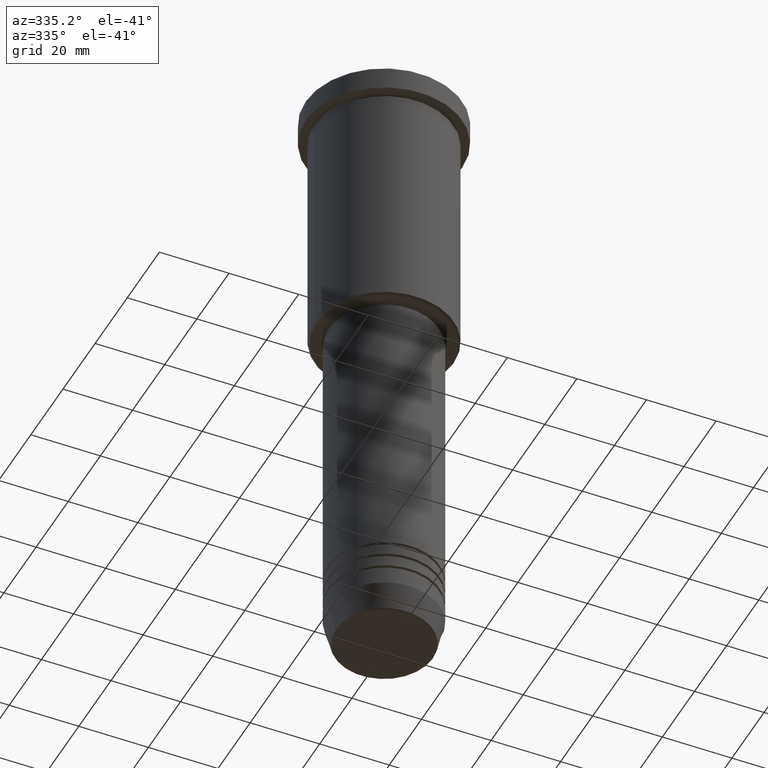
[diagram: clean part render]
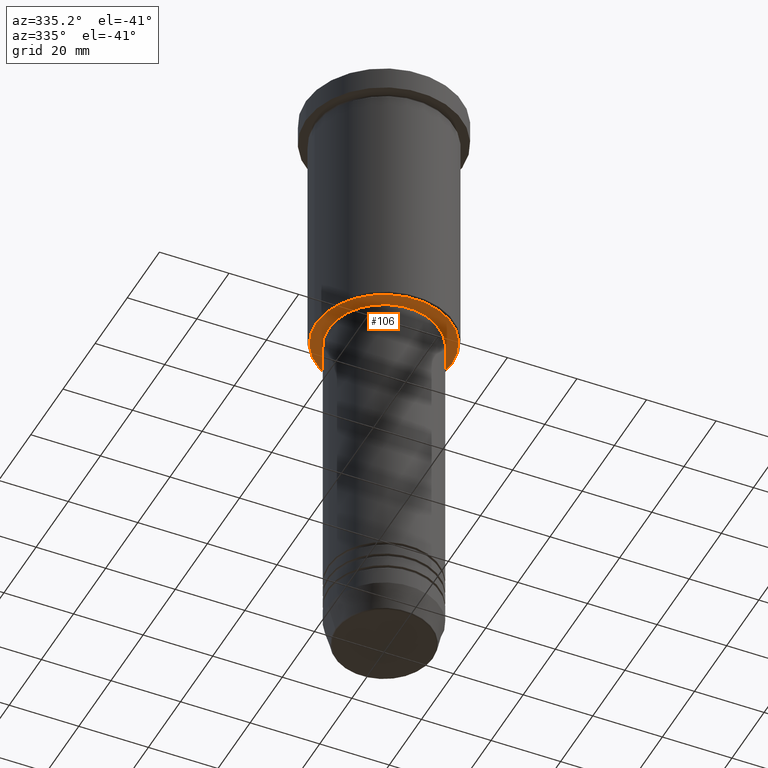
[diagram: same view with one face highlighted and labeled with its STEP entity id]
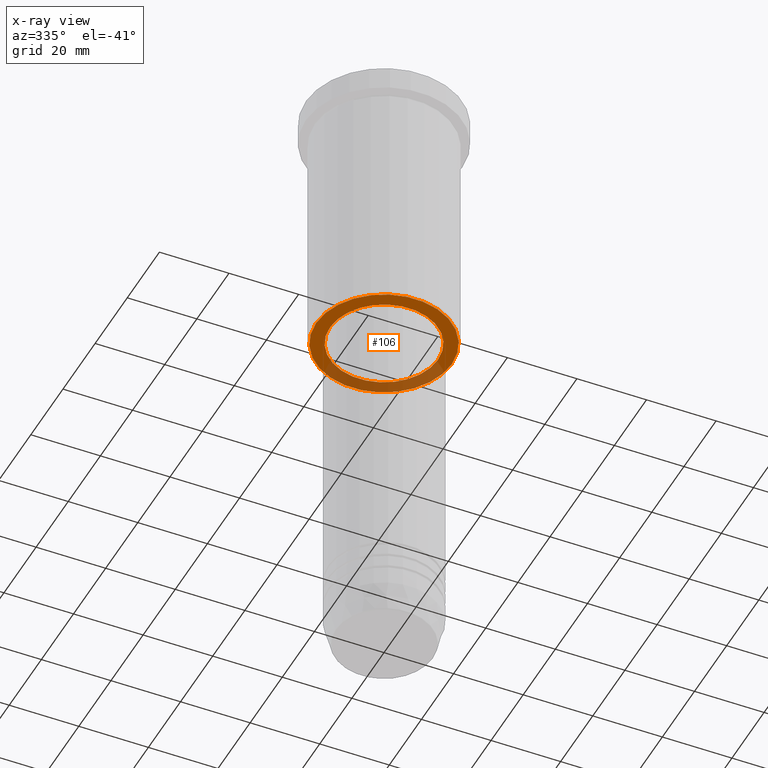
[diagram: x-ray of the same camera — body ghosted, the highlighted face saturated]
A machine part, auxiliary view. The second image highlights one B-rep face of the part: STEP entity #106.
The next image is the same camera in x-ray: the body ghosted, the highlighted face saturated — about 32% of this face is hidden behind the body in this view.
In plain terms, the highlighted planar face has unit normal (0, 0, -1).
Its self-contained STEP definition (entity closure, byte-faithful):
#76 = CARTESIAN_POINT ( 'NONE',  ( 0.000000000000000000, 0.000000000000000000, -76.00000000000001421 ) ) ;
#106 = ADVANCED_FACE ( 'NONE', ( #1096, #631 ), #913, .T. ) ;
#157 = EDGE_LOOP ( 'NONE', ( #592, #1130 ) ) ;
#164 = ORIENTED_EDGE ( 'NONE', *, *, #546, .T. ) ;
#182 = DIRECTION ( 'NONE',  ( 0.000000000000000000, 0.000000000000000000, -1.000000000000000000 ) ) ;
#186 = DIRECTION ( 'NONE',  ( -1.000000000000000000, 0.000000000000000000, 0.000000000000000000 ) ) ;
#188 = AXIS2_PLACEMENT_3D ( 'NONE', #274, #1082, #186 ) ;
#206 = ORIENTED_EDGE ( 'NONE', *, *, #897, .T. ) ;
#212 = VERTEX_POINT ( 'NONE', #468 ) ;
#274 = CARTESIAN_POINT ( 'NONE',  ( 0.000000000000000000, 0.000000000000000000, -76.00000000000001421 ) ) ;
#280 = AXIS2_PLACEMENT_3D ( 'NONE', #1018, #182, #991 ) ;
#318 = CIRCLE ( 'NONE', #188, 19.49999999999998934 ) ;
#338 = VERTEX_POINT ( 'NONE', #599 ) ;
#431 = DIRECTION ( 'NONE',  ( -0.000000000000000000, -0.000000000000000000, 1.000000000000000000 ) ) ;
#448 = CIRCLE ( 'NONE', #1122, 19.49999999999998934 ) ;
#460 = CARTESIAN_POINT ( 'NONE',  ( 0.000000000000000000, 0.000000000000000000, -76.00000000000001421 ) ) ;
#468 = CARTESIAN_POINT ( 'NONE',  ( 19.49999999999998934, 0.000000000000000000, -76.00000000000001421 ) ) ;
#484 = CARTESIAN_POINT ( 'NONE',  ( 0.000000000000000000, 0.000000000000000000, -76.00000000000001421 ) ) ;
#510 = EDGE_CURVE ( 'NONE', #212, #1027, #318, .T. ) ;
#546 = EDGE_CURVE ( 'NONE', #338, #707, #1101, .T. ) ;
#565 = CARTESIAN_POINT ( 'NONE',  ( -19.49999999999998934, 2.418677428316021937E-15, -76.00000000000001421 ) ) ;
#566 = DIRECTION ( 'NONE',  ( -0.000000000000000000, -0.000000000000000000, 1.000000000000000000 ) ) ;
#592 = ORIENTED_EDGE ( 'NONE', *, *, #510, .T. ) ;
#599 = CARTESIAN_POINT ( 'NONE',  ( 15.50000000000000000, 0.000000000000000000, -76.00000000000001421 ) ) ;
#619 = AXIS2_PLACEMENT_3D ( 'NONE', #484, #566, #1115 ) ;
#631 = FACE_BOUND ( 'NONE', #847, .T. ) ;
#672 = EDGE_CURVE ( 'NONE', #1027, #212, #448, .T. ) ;
#707 = VERTEX_POINT ( 'NONE', #889 ) ;
#763 = DIRECTION ( 'NONE',  ( -1.000000000000000000, 0.000000000000000000, 0.000000000000000000 ) ) ;
#821 = AXIS2_PLACEMENT_3D ( 'NONE', #76, #431, #1167 ) ;
#835 = DIRECTION ( 'NONE',  ( 0.000000000000000000, 0.000000000000000000, -1.000000000000000000 ) ) ;
#840 = CIRCLE ( 'NONE', #821, 15.50000000000000000 ) ;
#847 = EDGE_LOOP ( 'NONE', ( #164, #206 ) ) ;
#889 = CARTESIAN_POINT ( 'NONE',  ( -15.50000000000000000, 1.898202538678397557E-15, -76.00000000000001421 ) ) ;
#897 = EDGE_CURVE ( 'NONE', #707, #338, #840, .T. ) ;
#913 = PLANE ( 'NONE',  #280 ) ;
#991 = DIRECTION ( 'NONE',  ( -1.000000000000000000, 0.000000000000000000, -0.000000000000000000 ) ) ;
#1018 = CARTESIAN_POINT ( 'NONE',  ( 0.000000000000000000, 20.00000000000000355, -76.00000000000001421 ) ) ;
#1027 = VERTEX_POINT ( 'NONE', #565 ) ;
#1082 = DIRECTION ( 'NONE',  ( 0.000000000000000000, 0.000000000000000000, -1.000000000000000000 ) ) ;
#1096 = FACE_OUTER_BOUND ( 'NONE', #157, .T. ) ;
#1101 = CIRCLE ( 'NONE', #619, 15.50000000000000000 ) ;
#1115 = DIRECTION ( 'NONE',  ( 1.000000000000000000, 0.000000000000000000, 0.000000000000000000 ) ) ;
#1122 = AXIS2_PLACEMENT_3D ( 'NONE', #460, #835, #763 ) ;
#1130 = ORIENTED_EDGE ( 'NONE', *, *, #672, .T. ) ;
#1167 = DIRECTION ( 'NONE',  ( 1.000000000000000000, 0.000000000000000000, 0.000000000000000000 ) ) ;